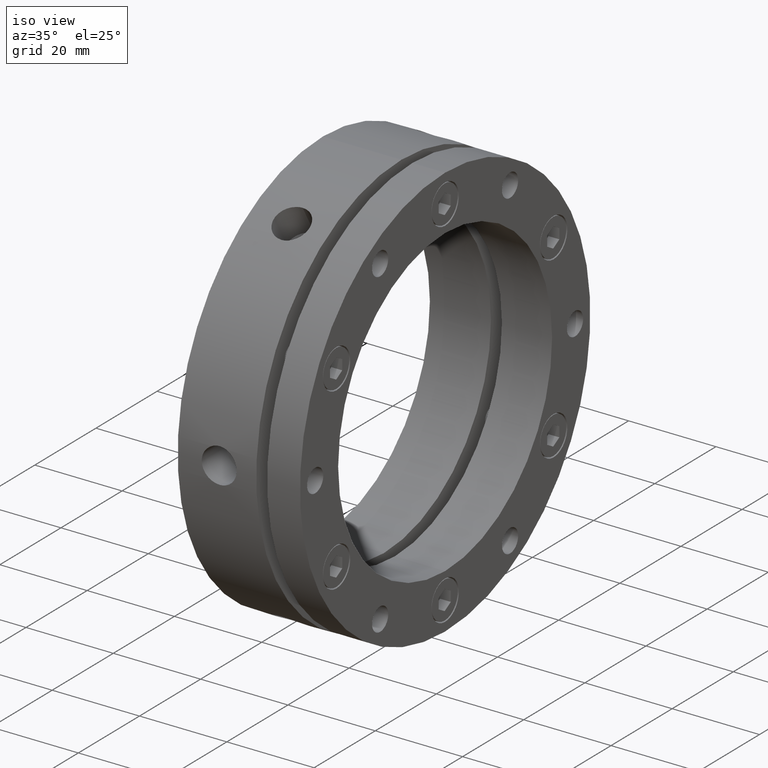
[diagram: clean part render]
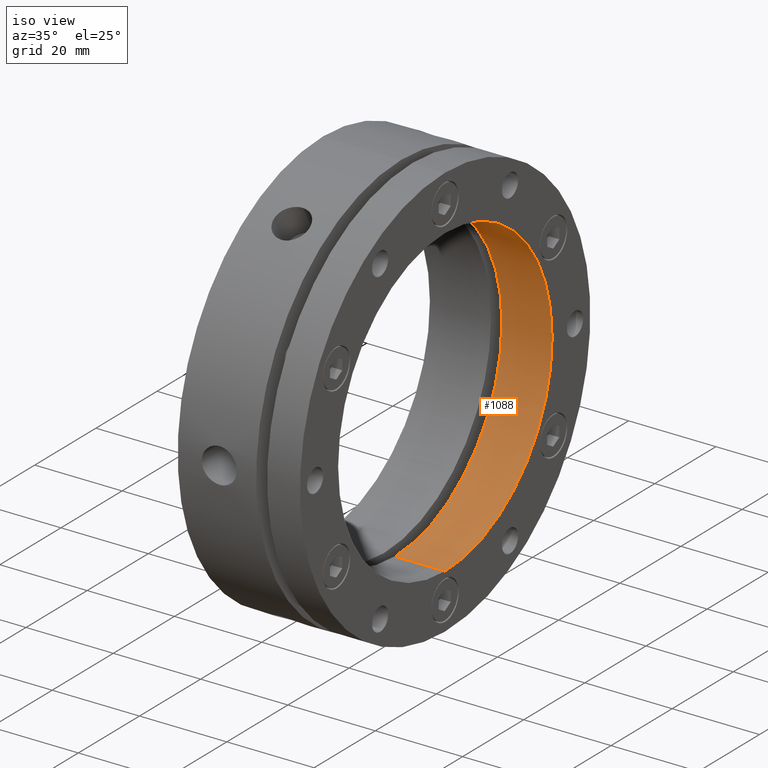
[diagram: same view with one face highlighted and labeled with its STEP entity id]
A machine part, iso view. The second image highlights one B-rep face of the part: STEP entity #1088.
In plain terms, the highlighted cylindrical surface (partial cylindrical patch) has radius 35 mm, axis along (1, 0, 0).
Its self-contained STEP definition (entity closure, byte-faithful):
#80 = VERTEX_POINT ( 'NONE', #1407 ) ;
#99 = VERTEX_POINT ( 'NONE', #1424 ) ;
#130 = VERTEX_POINT ( 'NONE', #1449 ) ;
#137 = VERTEX_POINT ( 'NONE', #1454 ) ;
#426 = AXIS2_PLACEMENT_3D ( 'NONE', #3999, #4000, #4001 ) ;
#462 = AXIS2_PLACEMENT_3D ( 'NONE', #2692, #2690, #2688 ) ;
#566 = EDGE_CURVE ( 'NONE', #137, #80, #3045, .T. ) ;
#569 = EDGE_CURVE ( 'NONE', #99, #130, #3048, .T. ) ;
#752 = ORIENTED_EDGE ( 'NONE', *, *, #3490, .F. ) ;
#753 = ORIENTED_EDGE ( 'NONE', *, *, #566, .T. ) ;
#754 = ORIENTED_EDGE ( 'NONE', *, *, #4735, .T. ) ;
#755 = ORIENTED_EDGE ( 'NONE', *, *, #569, .F. ) ;
#788 = EDGE_LOOP ( 'NONE', ( #755, #754, #753, #752 ) ) ;
#1088 = ADVANCED_FACE ( 'NONE', ( #1780 ), #1789, .F. ) ;
#1407 = CARTESIAN_POINT ( 'NONE',  ( 27.99999999999999300, 0.0000000000000000000, -35.00000000000000000 ) ) ;
#1424 = CARTESIAN_POINT ( 'NONE',  ( 16.50000000000000000, 4.286263797015736500E-015, 35.00000000000000000 ) ) ;
#1449 = CARTESIAN_POINT ( 'NONE',  ( 27.99999999999999300, 4.286263797015736500E-015, 35.00000000000000000 ) ) ;
#1454 = CARTESIAN_POINT ( 'NONE',  ( 16.50000000000000000, 0.0000000000000000000, -35.00000000000000000 ) ) ;
#1780 = FACE_OUTER_BOUND ( 'NONE', #788, .T. ) ;
#1789 = CYLINDRICAL_SURFACE ( 'NONE', #462, 35.00000000000000000 ) ;
#1815 = CIRCLE ( 'NONE', #1923, 35.00000000000000000 ) ;
#1923 = AXIS2_PLACEMENT_3D ( 'NONE', #2872, #2873, #2874 ) ;
#2178 = DIRECTION ( 'NONE',  ( 1.000000000000000000, 0.0000000000000000000, 0.0000000000000000000 ) ) ;
#2180 = CARTESIAN_POINT ( 'NONE',  ( 13.99999999999999300, 0.0000000000000000000, -35.00000000000000000 ) ) ;
#2184 = DIRECTION ( 'NONE',  ( 1.000000000000000000, 0.0000000000000000000, 0.0000000000000000000 ) ) ;
#2187 = CARTESIAN_POINT ( 'NONE',  ( 13.99999999999999300, 4.286263797015736500E-015, 35.00000000000000000 ) ) ;
#2688 = DIRECTION ( 'NONE',  ( 0.0000000000000000000, 0.0000000000000000000, -1.000000000000000000 ) ) ;
#2690 = DIRECTION ( 'NONE',  ( 1.000000000000000000, 0.0000000000000000000, 0.0000000000000000000 ) ) ;
#2692 = CARTESIAN_POINT ( 'NONE',  ( 13.99999999999999300, 0.0000000000000000000, 0.0000000000000000000 ) ) ;
#2872 = CARTESIAN_POINT ( 'NONE',  ( 27.99999999999999300, 0.0000000000000000000, 0.0000000000000000000 ) ) ;
#2873 = DIRECTION ( 'NONE',  ( -1.000000000000000000, -0.0000000000000000000, -0.0000000000000000000 ) ) ;
#2874 = DIRECTION ( 'NONE',  ( 0.0000000000000000000, 0.0000000000000000000, -1.000000000000000000 ) ) ;
#3045 = LINE ( 'NONE', #2180, #3049 ) ;
#3048 = LINE ( 'NONE', #2187, #3054 ) ;
#3049 = VECTOR ( 'NONE', #2178, 1000.000000000000000 ) ;
#3054 = VECTOR ( 'NONE', #2184, 1000.000000000000000 ) ;
#3490 = EDGE_CURVE ( 'NONE', #130, #80, #1815, .T. ) ;
#3999 = CARTESIAN_POINT ( 'NONE',  ( 16.50000000000000000, 0.0000000000000000000, 0.0000000000000000000 ) ) ;
#4000 = DIRECTION ( 'NONE',  ( -1.000000000000000000, -0.0000000000000000000, -0.0000000000000000000 ) ) ;
#4001 = DIRECTION ( 'NONE',  ( 0.0000000000000000000, 0.0000000000000000000, -1.000000000000000000 ) ) ;
#4361 = CIRCLE ( 'NONE', #426, 35.00000000000000000 ) ;
#4735 = EDGE_CURVE ( 'NONE', #99, #137, #4361, .T. ) ;